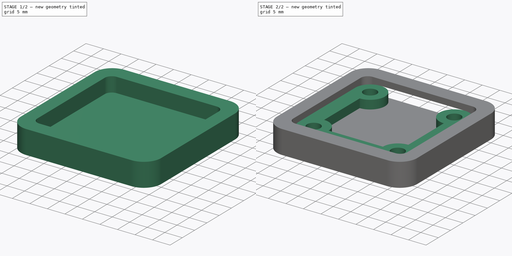
[diagram: build sequence overview — one tinted view per stage of 2, left to right]
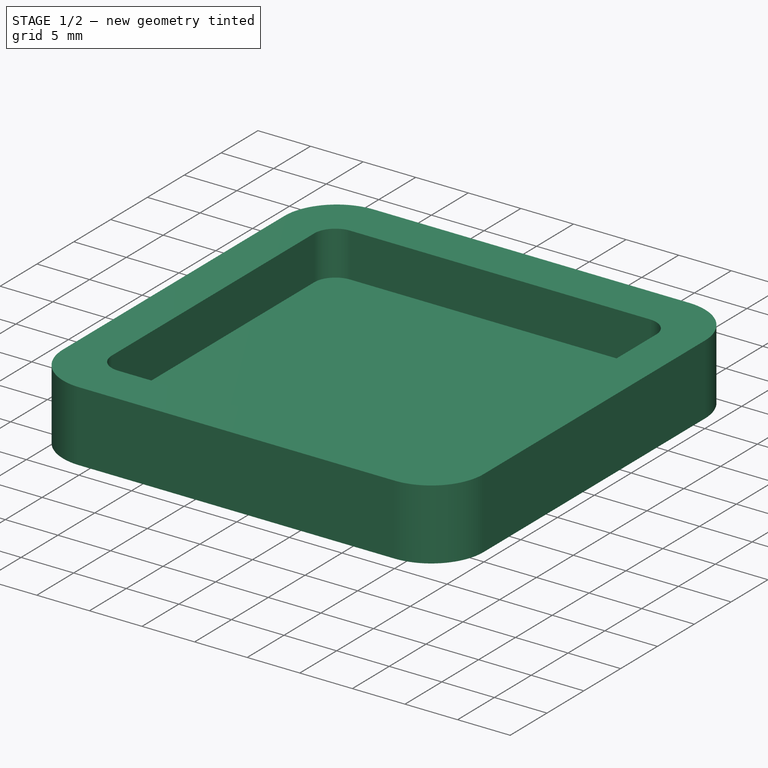
[diagram: stage 1 of 2 — iso view after this stage's code; geometry added in this stage tinted green]
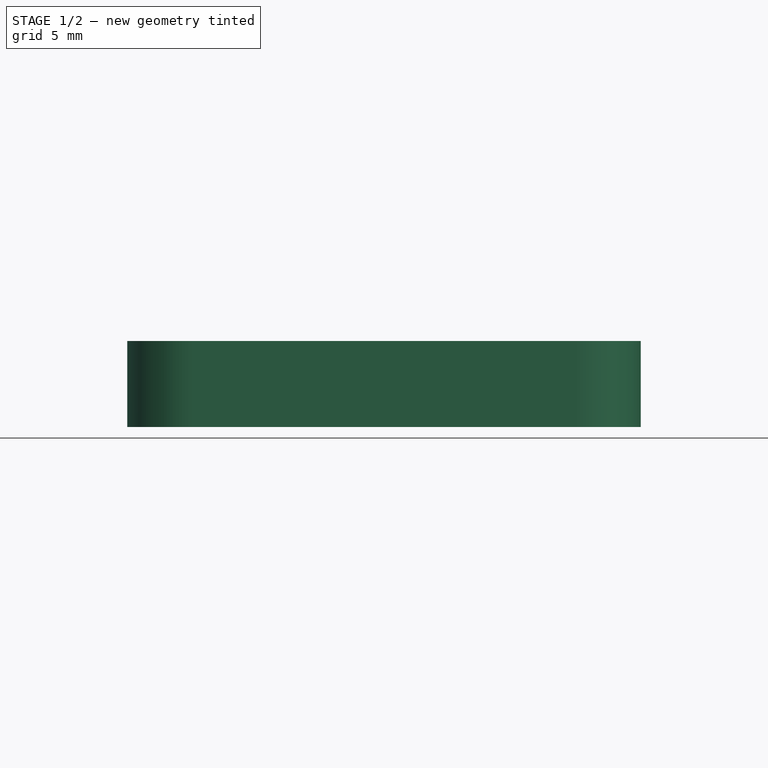
[diagram: stage 1 of 2 — front view after this stage's code; geometry added in this stage tinted green]
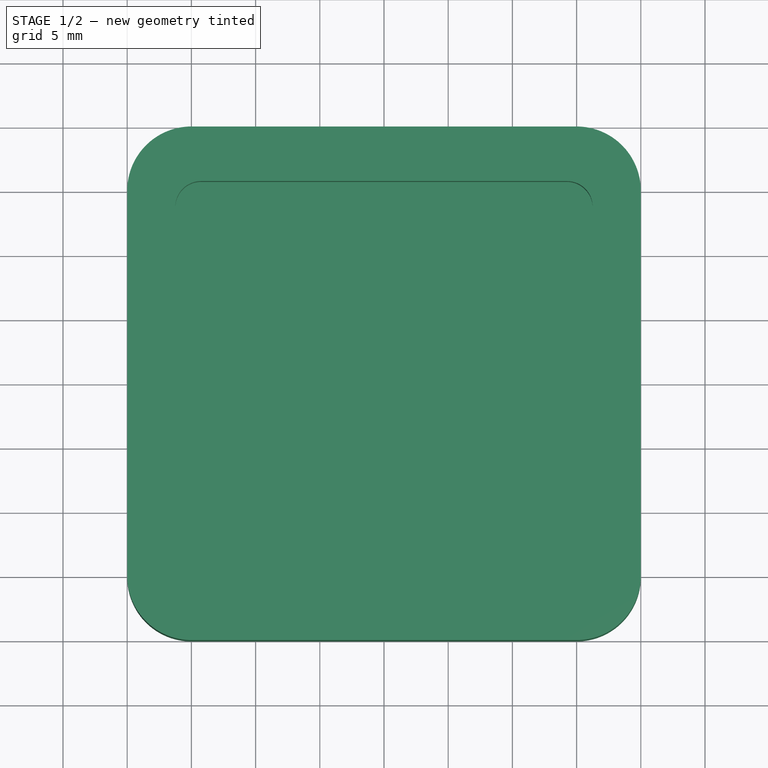
[diagram: stage 1 of 2 — top view after this stage's code; geometry added in this stage tinted green]
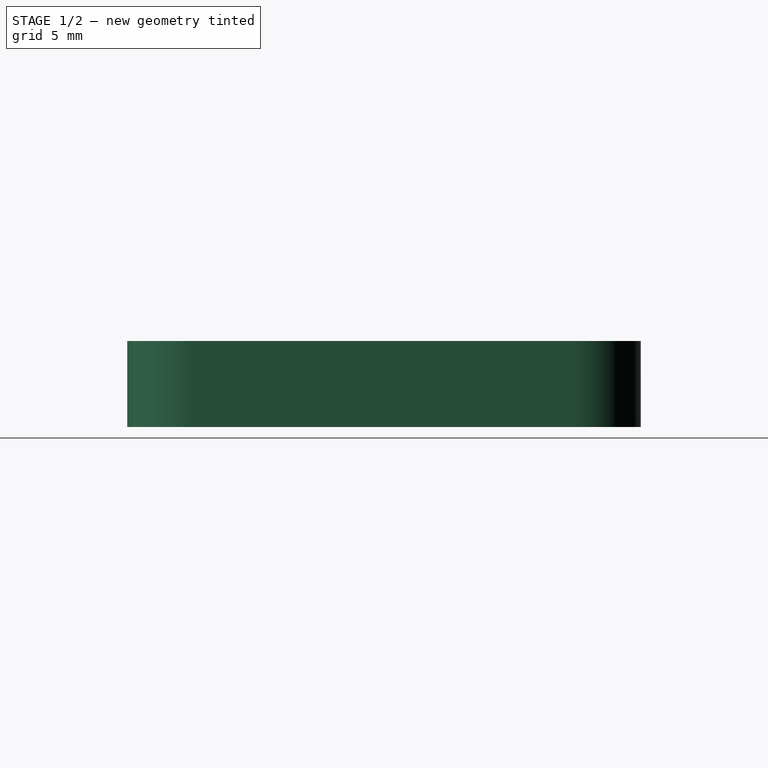
[diagram: stage 1 of 2 — right view after this stage's code; geometry added in this stage tinted green]
FCSTD DOCUMENT  (FreeCAD 0.20R29603 (Git))
Label: backing_plate
License: All rights reserved
LicenseURL: http://en.wikipedia.org/wiki/All_rights_reserved
objects: Sketcher::SketchObject×4, PartDesign::Plane×3, PartDesign::Pad×2, PartDesign::Pocket×2, PartDesign::Body×1
note: 16 computed .brp shape members not serialized (recipe doc carries the construction recipe); baked Part::Feature solids carry a one-line shape summary decoded from their .brp

FEATURE [PartDesign::Plane] DatumPlane  label="PCB Bottom"
  AttachmentOffset = pos=(0,0,5) rot=(0,0,1;0rad)
  Length = 60
  MapMode = 5
  Placement = pos=(0,0,5) rot=(0,0,1;0rad)
  ResizeMode = 0
  Support = -> [XY_Plane]
  Width = 60
FEATURE [PartDesign::Plane] DatumPlane001  label="PCB Top"
  AttachmentOffset = pos=(0,0,1.7) rot=(0,0,1;0rad)
  Length = 60
  MapMode = 5
  Placement = pos=(0,0,6.7) rot=(0,0,1;0rad)
  ResizeMode = 0
  Support = -> [DatumPlane]
  Width = 60
FEATURE [Sketcher::SketchObject] Sketch  label="PCB Outline"
  FullyConstrained = true
  MapMode = 5
  Placement = pos=(0,0,6.7) rot=(0,0,1;0rad)
  Support = -> [DatumPlane001]
  sketch-geometry (8):
    g0: LineSegment StartX=-14.25 StartY=15.75 StartZ=0 EndX=14.25 EndY=15.75 EndZ=0
    g1: LineSegment StartX=16.25 StartY=13.75 StartZ=0 EndX=16.25 EndY=-13.75 EndZ=0
    g2: LineSegment StartX=14.25 StartY=-15.75 StartZ=0 EndX=-14.25 EndY=-15.75 EndZ=0
    g3: LineSegment StartX=-16.25 StartY=-13.75 StartZ=0 EndX=-16.25 EndY=13.75 EndZ=0
    g4: ArcOfCircle CenterX=-14.25 CenterY=13.75 CenterZ=0 NormalX=0 NormalY=0 NormalZ=1 AngleXU=0 Radius=2 StartAngle=1.5708 EndAngle=3.14159
    g5: ArcOfCircle CenterX=-14.25 CenterY=-13.75 CenterZ=0 NormalX=0 NormalY=0 NormalZ=1 AngleXU=0 Radius=2 StartAngle=3.14159 EndAngle=4.71239
    g6: ArcOfCircle CenterX=14.25 CenterY=-13.75 CenterZ=0 NormalX=0 NormalY=0 NormalZ=1 AngleXU=0 Radius=2 StartAngle=4.71239 EndAngle=6.28319
    g7: ArcOfCircle CenterX=14.25 CenterY=13.75 CenterZ=0 NormalX=0 NormalY=0 NormalZ=1 AngleXU=0 Radius=2 StartAngle=0 EndAngle=1.5708
  constraints (18):
    c: Horizontal(g0)
    c: Horizontal(g2)
    c: Vertical(g1)
    c: Vertical(g3)
    c: Tangent(g0,g4) = 1.5708
    c: Tangent(g3,g4) = 1.5708
    c: Tangent(g3,g5) = 1.5708
    c: Tangent(g2,g5) = 1.5708
    c: Tangent(g2,g6) = 1.5708
    c: Tangent(g1,g6) = 1.5708
    c: Tangent(g1,g7) = 1.5708
    c: Tangent(g0,g7) = 1.5708
    c: Equal(g6,g5)
    c: Symmetric(g4,g7,g-2)
    c: Symmetric(g7,g6,g-1)
    c: DistanceX(g3,g1) = 32.5
    c: DistanceY(g2,g0) = 31.5
    c: Radius(g5) = 2
FEATURE [Sketcher::SketchObject] Sketch001  label="Plate Outline"
  FullyConstrained = true
  MapMode = 5
  Support = -> [XY_Plane]
  sketch-geometry (8):
    g0: LineSegment StartX=-15 StartY=20 StartZ=0 EndX=15 EndY=20 EndZ=0
    g1: LineSegment StartX=20 StartY=15 StartZ=0 EndX=20 EndY=-15 EndZ=0
    g2: LineSegment StartX=15 StartY=-20 StartZ=0 EndX=-15 EndY=-20 EndZ=0
    g3: LineSegment StartX=-20 StartY=-15 StartZ=0 EndX=-20 EndY=15 EndZ=0
    g4: ArcOfCircle CenterX=-15 CenterY=15 CenterZ=0 NormalX=0 NormalY=0 NormalZ=1 AngleXU=0 Radius=5 StartAngle=1.5708 EndAngle=3.14159
    g5: ArcOfCircle CenterX=15 CenterY=15 CenterZ=0 NormalX=0 NormalY=0 NormalZ=1 AngleXU=0 Radius=5 StartAngle=0 EndAngle=1.5708
    g6: ArcOfCircle CenterX=15 CenterY=-15 CenterZ=0 NormalX=0 NormalY=0 NormalZ=1 AngleXU=0 Radius=5 StartAngle=4.71239 EndAngle=6.28319
    g7: ArcOfCircle CenterX=-15 CenterY=-15 CenterZ=0 NormalX=0 NormalY=0 NormalZ=1 AngleXU=0 Radius=5 StartAngle=3.14159 EndAngle=4.71239
  constraints (18):
    c: Horizontal(g0)
    c: Horizontal(g2)
    c: Vertical(g1)
    c: Vertical(g3)
    c: Tangent(g0,g4) = 1.5708
    c: Tangent(g3,g4) = 1.5708
    c: Tangent(g0,g5) = 1.5708
    c: Tangent(g1,g5) = 1.5708
    c: Tangent(g1,g6) = 1.5708
    c: Tangent(g2,g6) = 1.5708
    c: Tangent(g2,g7) = 1.5708
    c: Tangent(g3,g7) = 1.5708
    c: Equal(g6,g7)
    c: Radius(g7) = 5
    c: Symmetric(g4,g5,g-2)
    c: Symmetric(g5,g6,g-1)
    c: DistanceX(g3,g1) = 40
    c: DistanceY(g2,g0) = 40
FEATURE [PartDesign::Pad] Pad  label="Plate"
  Direction = (0,0,1)
  Length = 10
  Length2 = 10
  Profile = -> Sketch001
  ReferenceAxis = -> Sketch001 [N_Axis]
  Type = 3
  UpToFace = -> DatumPlane001 [Plane]
FEATURE [PartDesign::Plane] DatumPlane002  label="PCB Bottom Clear"
  AttachmentOffset = pos=(0,0,-2.5) rot=(0,0,1;0rad)
  Length = 60
  MapMode = 5
  Placement = pos=(0,0,2.5) rot=(0,0,1;0rad)
  ResizeMode = 0
  Support = -> [DatumPlane]
  Width = 60
FEATURE [PartDesign::Pocket] Pocket  label="PCB Cutout"
  BaseFeature = -> Pad
  Direction = (0,0,-1)
  Length = 0
  Length2 = 5
  Profile = -> Sketch
  ReferenceAxis = -> Sketch [N_Axis]
  Type = 3
  UpToFace = -> DatumPlane002 [Plane]
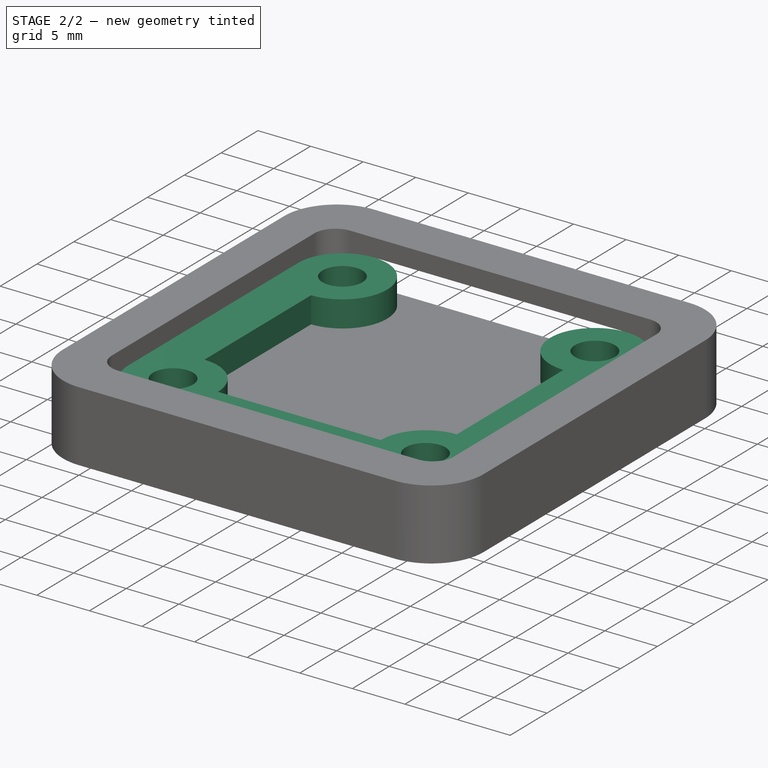
[diagram: stage 2 of 2 — iso view after this stage's code; geometry added in this stage tinted green]
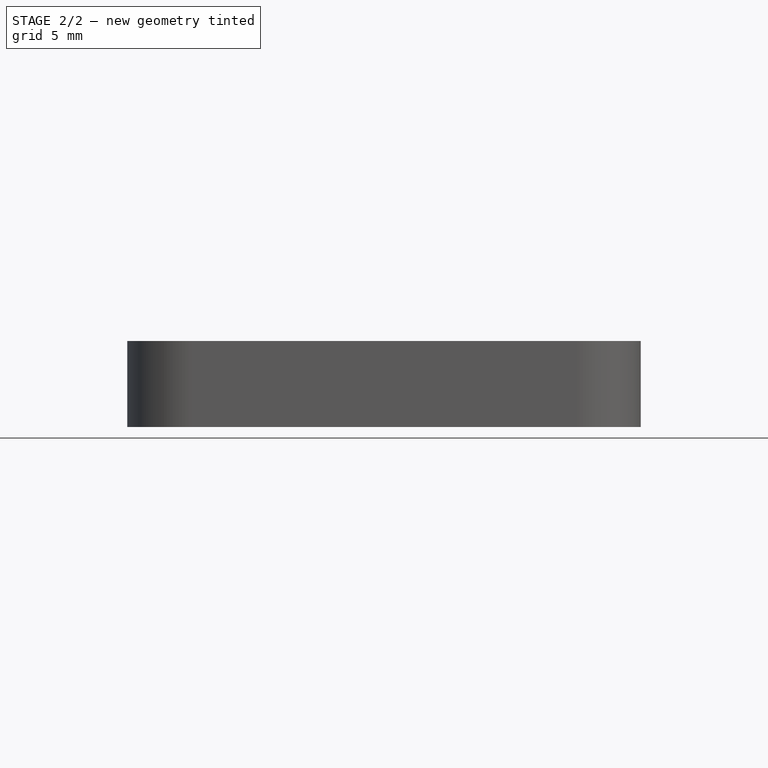
[diagram: stage 2 of 2 — front view after this stage's code; geometry added in this stage tinted green]
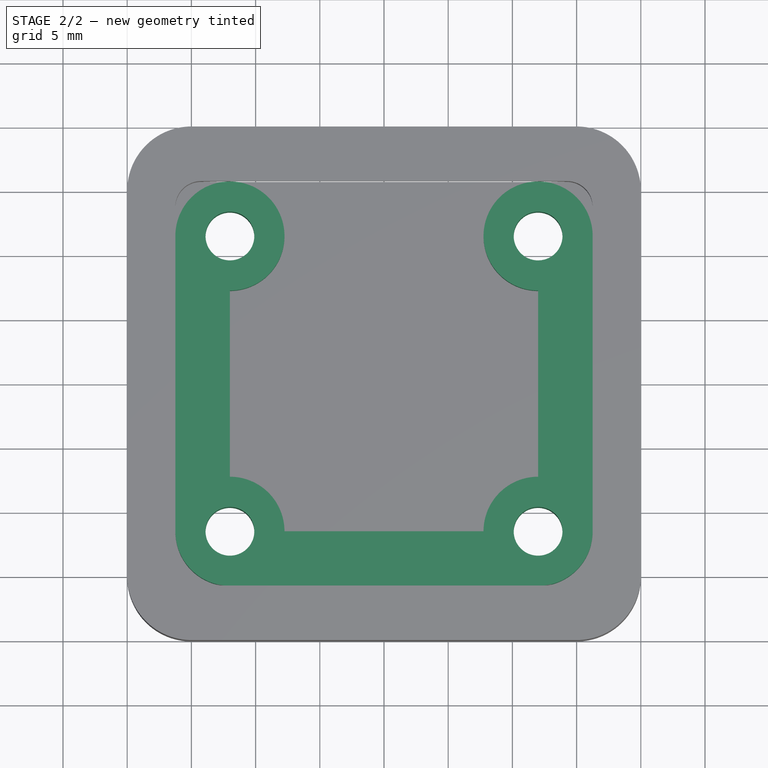
[diagram: stage 2 of 2 — top view after this stage's code; geometry added in this stage tinted green]
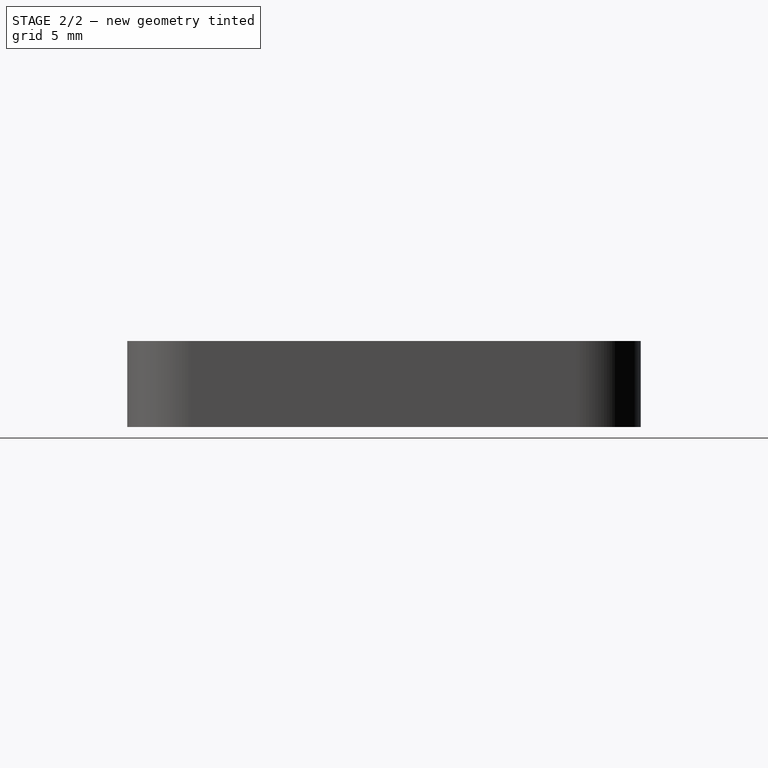
[diagram: stage 2 of 2 — right view after this stage's code; geometry added in this stage tinted green]
FEATURE [Sketcher::SketchObject] Sketch002  label="PCB Mounting Holes"
  FullyConstrained = true
  MapMode = 5
  Placement = pos=(0,0,6.7) rot=(0,0,1;0rad)
  Support = -> [DatumPlane001]
  sketch-geometry (8):
    g0: Circle CenterX=-12 CenterY=11.5 CenterZ=0 NormalX=0 NormalY=0 NormalZ=1 AngleXU=0 Radius=1.9
    g1: Circle CenterX=-12 CenterY=-11.5 CenterZ=0 NormalX=0 NormalY=0 NormalZ=1 AngleXU=0 Radius=1.9
    g2: Circle CenterX=12 CenterY=11.5 CenterZ=0 NormalX=0 NormalY=0 NormalZ=1 AngleXU=0 Radius=1.9
    g3: Circle CenterX=12 CenterY=-11.5 CenterZ=0 NormalX=0 NormalY=0 NormalZ=1 AngleXU=0 Radius=1.9
    g4: LineSegment StartX=-12 StartY=11.5 StartZ=0 EndX=12 EndY=11.5 EndZ=0
    g5: LineSegment StartX=12 StartY=11.5 StartZ=0 EndX=12 EndY=-11.5 EndZ=0
    g6: LineSegment StartX=12 StartY=-11.5 StartZ=0 EndX=-12 EndY=-11.5 EndZ=0
    g7: LineSegment StartX=-12 StartY=-11.5 StartZ=0 EndX=-12 EndY=11.5 EndZ=0
  constraints (18):
    c: Equal(g2,g0)
    c: Equal(g0,g1)
    c: Equal(g1,g3)
    c: Coincident(g4,g5)
    c: Coincident(g5,g6)
    c: Coincident(g6,g7)
    c: Coincident(g7,g4)
    c: Horizontal(g6)
    c: Vertical(g7)
    c: Coincident(g0,g4)
    c: Coincident(g1,g6)
    c: Coincident(g2,g4)
    c: Coincident(g3,g5)
    c: Symmetric(g0,g2,g-2)
    c: Symmetric(g2,g3,g-1)
    c: DistanceY(g5,g5) = 23
    c: DistanceX(g4,g4) = 24
    c: Diameter(g1) = 3.8
FEATURE [Sketcher::SketchObject] Sketch003  label="PCB Mount Supports Outline"
  FullyConstrained = true
  MapMode = 5
  Placement = pos=(0,0,5) rot=(0,0,1;0rad)
  Support = -> [DatumPlane]
  sketch-geometry (20):
    g0: Circle CenterX=-12 CenterY=11.5 CenterZ=0 NormalX=0 NormalY=0 NormalZ=1 AngleXU=0 Radius=4.25
    g1: Circle CenterX=12 CenterY=11.5 CenterZ=0 NormalX=0 NormalY=0 NormalZ=1 AngleXU=0 Radius=4.25
    g2: Circle CenterX=12 CenterY=-11.5 CenterZ=0 NormalX=0 NormalY=0 NormalZ=1 AngleXU=0 Radius=4.25
    g3: Circle CenterX=-12 CenterY=-11.5 CenterZ=0 NormalX=0 NormalY=0 NormalZ=1 AngleXU=0 Radius=4.25
    g4: LineSegment StartX=-12 StartY=11.5 StartZ=0 EndX=12 EndY=11.5 EndZ=0
    g5: LineSegment StartX=12 StartY=11.5 StartZ=0 EndX=12 EndY=-11.5 EndZ=0
    g6: LineSegment StartX=12 StartY=-11.5 StartZ=0 EndX=-12 EndY=-11.5 EndZ=0
    g7: LineSegment StartX=-12 StartY=-11.5 StartZ=0 EndX=-12 EndY=11.5 EndZ=0
    g8: LineSegment StartX=-16.25 StartY=11.5 StartZ=0 EndX=-16.25 EndY=-11.5 EndZ=0
    g9: LineSegment StartX=-12 StartY=-15.75 StartZ=0 EndX=12 EndY=-15.75 EndZ=0
    g10: LineSegment StartX=16.25 StartY=-11.5 StartZ=0 EndX=16.25 EndY=11.5 EndZ=0
    g11: LineSegment StartX=-12 StartY=7.25 StartZ=0 EndX=-12 EndY=-7.25 EndZ=0
    g12: LineSegment StartX=-7.75 StartY=-11.5 StartZ=0 EndX=7.75 EndY=-11.5 EndZ=0
    g13: LineSegment StartX=12 StartY=-7.25 StartZ=0 EndX=12 EndY=7.25 EndZ=0
    g14: ArcOfCircle CenterX=12 CenterY=-11.5 CenterZ=0 NormalX=0 NormalY=0 NormalZ=1 AngleXU=0 Radius=4.25 StartAngle=4.71239 EndAngle=6.28319
    g15: ArcOfCircle CenterX=-12 CenterY=-11.5 CenterZ=0 NormalX=0 NormalY=0 NormalZ=1 AngleXU=0 Radius=4.25 StartAngle=3.14159 EndAngle=4.71239
    g16: ArcOfCircle CenterX=12 CenterY=-11.5 CenterZ=0 NormalX=0 NormalY=0 NormalZ=1 AngleXU=0 Radius=4.25 StartAngle=1.5708 EndAngle=3.14159
    g17: ArcOfCircle CenterX=-12 CenterY=-11.5 CenterZ=0 NormalX=0 NormalY=0 NormalZ=1 AngleXU=0 Radius=4.25 StartAngle=0 EndAngle=1.5708
    g18: ArcOfCircle CenterX=-12 CenterY=11.5 CenterZ=0 NormalX=0 NormalY=0 NormalZ=1 AngleXU=0 Radius=4.25 StartAngle=4.71239 EndAngle=9.42478
    g19: ArcOfCircle CenterX=12 CenterY=11.5 CenterZ=0 NormalX=0 NormalY=0 NormalZ=1 AngleXU=0 Radius=4.25 StartAngle=2.15373e-06 EndAngle=4.71239
  constraints (51):
    c: Coincident(g4,g5)
    c: Coincident(g5,g6)
    c: Coincident(g6,g7)
    c: Coincident(g7,g4)
    c: Horizontal(g6)
    c: Vertical(g7)
    c: Coincident(g4,g0)
    c: Coincident(g5,g2)
    c: Coincident(g1,g4)
    c: Coincident(g3,g6)
    c: Equal(g1,g2)
    c: Equal(g2,g3)
    c: Equal(g3,g0)
    c: Diameter(g3) = 8.5
    c: Symmetric(g0,g1,g-2)
    c: Symmetric(g1,g2,g-1)
    c: DistanceX(g4,g4) = 24
    c: DistanceY(g5,g5) = 23
    c: Horizontal(g9)
    c: Tangent(g8,g0) = -1.5708
    c: PointOnObject(g11,g3)
    c: Vertical(g11)
    c: PointOnObject(g12,g2)
    c: Horizontal(g12)
    c: PointOnObject(g13,g1)
    c: Vertical(g13)
    c: Coincident(g14,g2)
    c: Coincident(g14,g10)
    c: Coincident(g14,g9)
    c: Coincident(g15,g3)
    c: Coincident(g15,g8)
    c: Coincident(g15,g9)
    c: Coincident(g16,g14)
    c: Coincident(g16,g13)
    c: Coincident(g16,g12)
    c: Coincident(g17,g15)
    c: Coincident(g17,g12)
    c: Coincident(g17,g11)
    c: Tangent(g9,g2) = -1.5708
    c: Tangent(g1,g10)
    c: Tangent(g10,g2)
    c: Tangent(g8,g3) = -1.5708
    c: PointOnObject(g11,g7)
    c: PointOnObject(g13,g5)
    c: PointOnObject(g12,g6)
    c: Coincident(g18,g0)
    c: Coincident(g18,g8)
    c: Coincident(g18,g11)
    c: Coincident(g19,g1)
    c: Coincident(g19,g13)
    c: Coincident(g19,g10)
FEATURE [PartDesign::Pad] Pad001  label="PCB Mount Supports"
  BaseFeature = -> Pocket
  Direction = (0,0,1)
  Length = 10
  Length2 = 10
  Profile = -> Sketch003
  ReferenceAxis = -> Sketch003 [N_Axis]
  Type = 3
  UpToFace = -> DatumPlane002
FEATURE [PartDesign::Pocket] Pocket001  label="PCB Mounting Holes Cutout"
  BaseFeature = -> Pad001
  Direction = (0,0,-1)
  Length = 0
  Length2 = 5
  Profile = -> Sketch002
  ReferenceAxis = -> Sketch002 [N_Axis]
  Type = 3
  UpToFace = -> XY_Plane
FEATURE [PartDesign::Body] Body
  Group = -> [DatumPlane,DatumPlane002,DatumPlane001,Sketch001,Pad,Sketch,Pocket,Sketch003,Pad001,Sketch002,Pocket001]
  Origin = -> Origin
  Tip = -> Pocket001
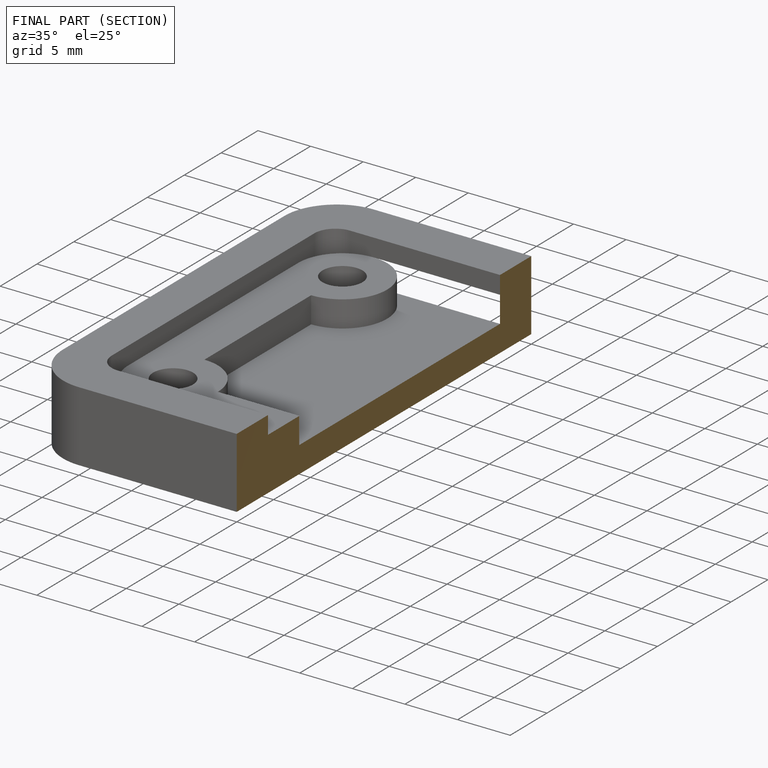
[diagram: finished part — half-section view (interior)]
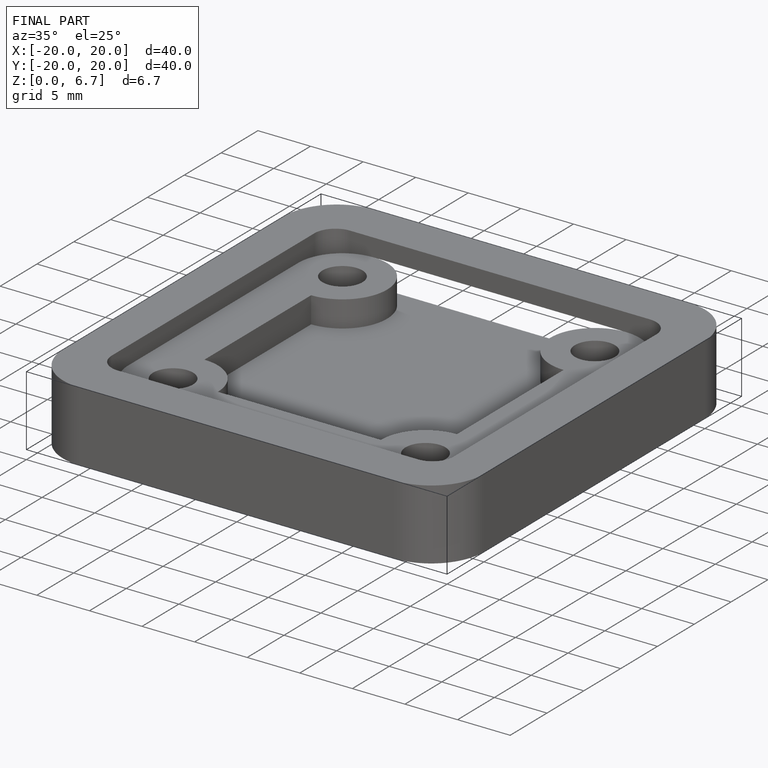
[diagram: finished part — iso view with bounding-box wireframe]
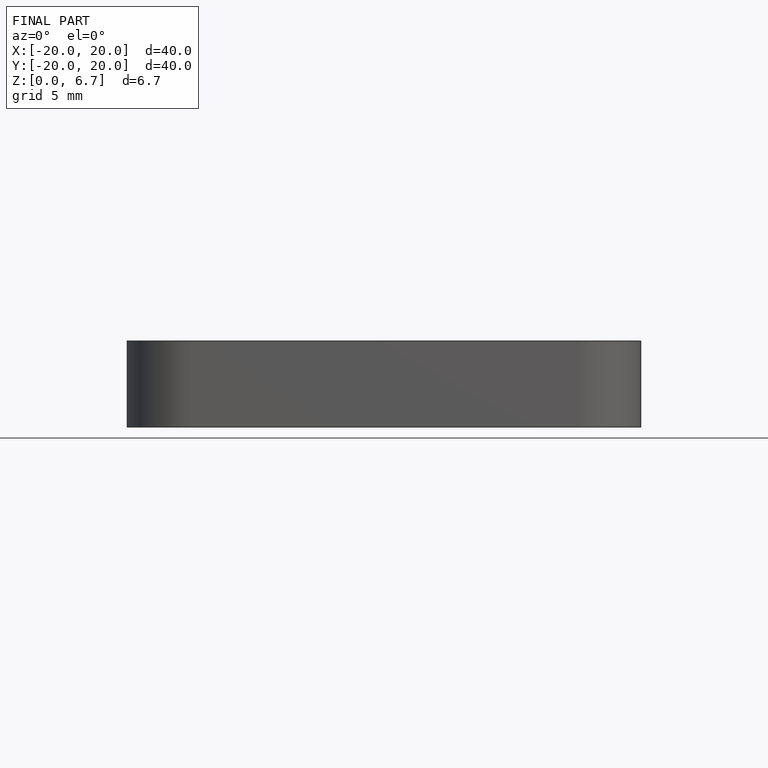
[diagram: finished part — front view with bounding-box wireframe]
